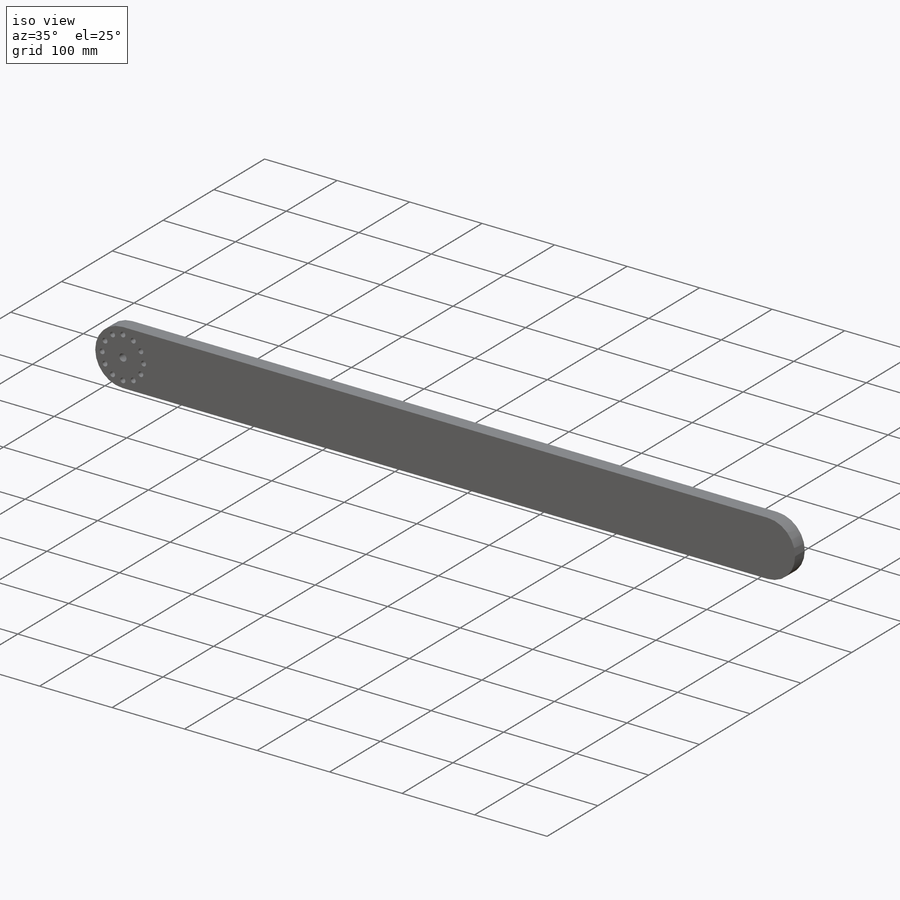
[diagram: iso view]
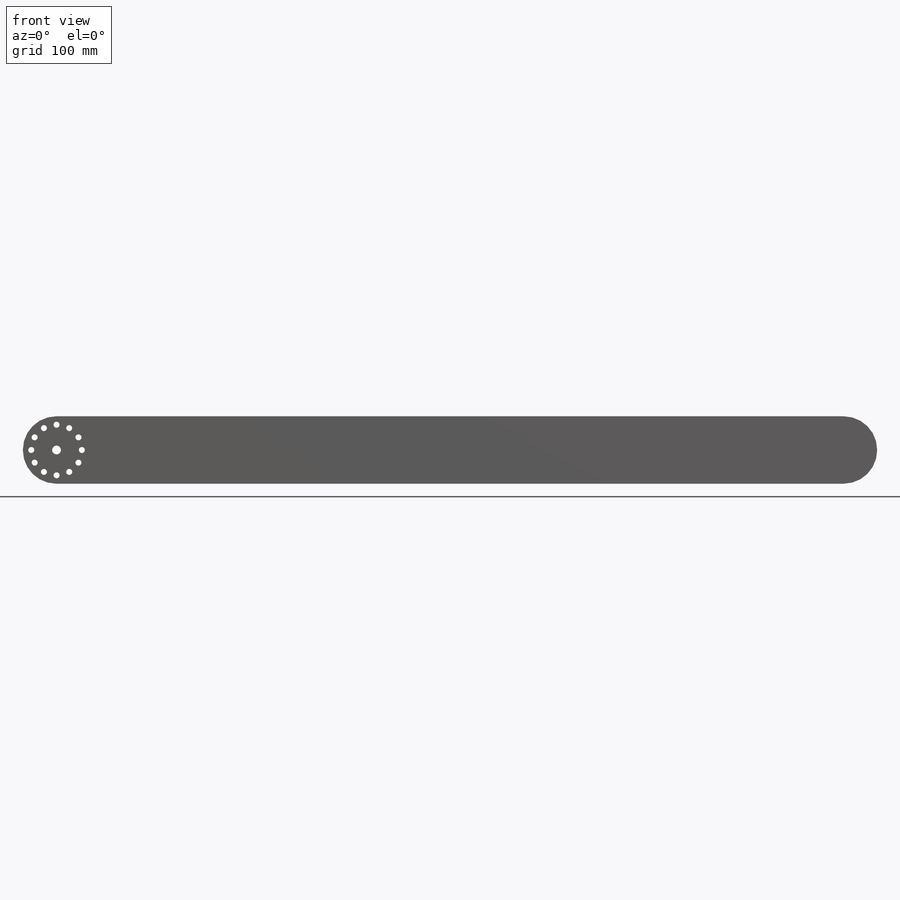
[diagram: front view]
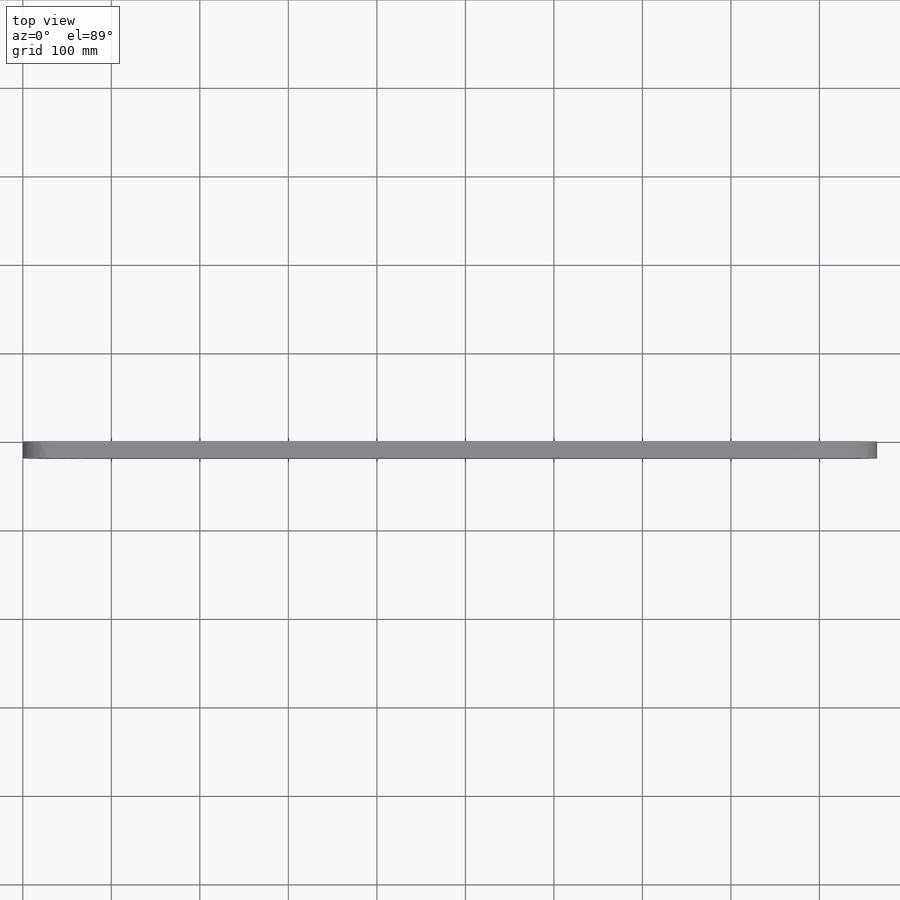
[diagram: top view]
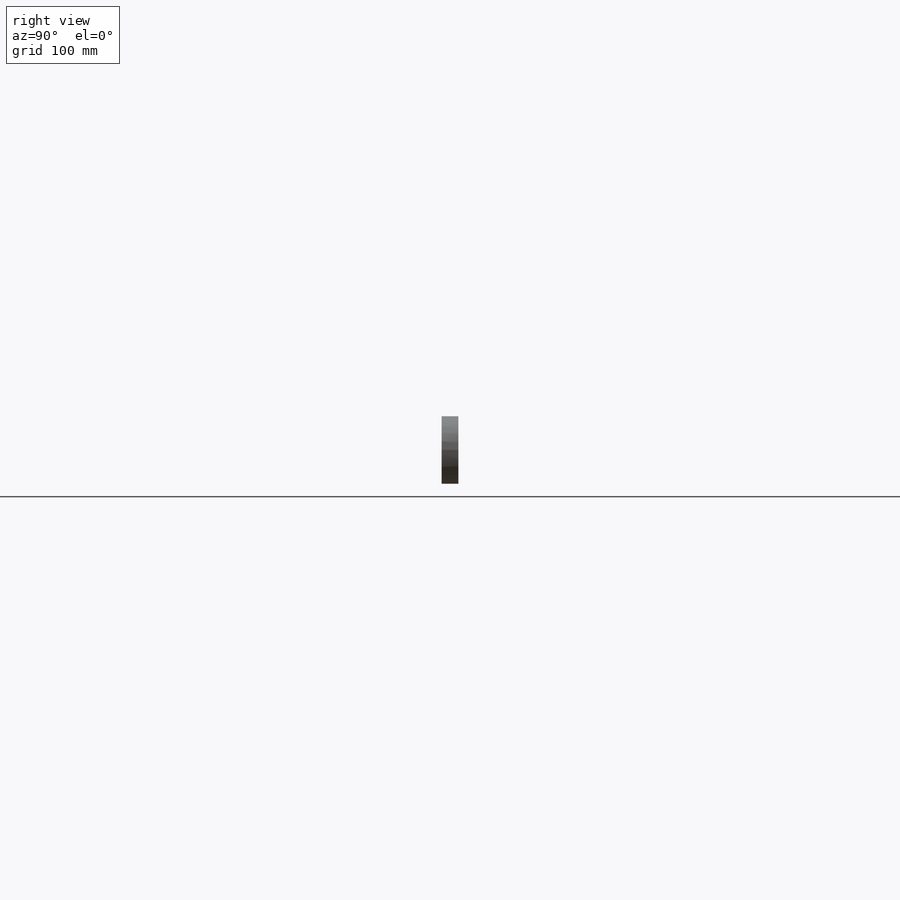
[diagram: right view]
SOLIDWORKS PART (.sldprt)
format: sldprt  version: not decoded by parser v0  size: 207,872 bytes
history: native  units: mm
features: sketch x3, cut_extrude x2, material x1, extrude x1 (+13 scaffold rows collapsed)
feature tree (20):
  scaffold x13  (default folders/planes/origin — collapsed)
  material  "Material <not specified>"
  sketch  "Sketch2"  dims[D3=37.846mm D1=76.2mm D2=965.2mm]
  extrude  "Boss-Extrude1"  Depth=19.05mm
  sketch  "Sketch3"  dims[c1.D3=~26.484832mm c1.D1=120.65mm c1.D2=7.0 c2.D3=7.0]
  cut_extrude  "Cut-Extrude1"  Depth=9.525mm
  sketch  "Sketch5"  dims[c1.D2=~9.921875mm c1.D3=57.15mm c1.D4=~6.746875mm c1.D1=38.1mm c2.D4=889.508mm c2.D5=12.0]
  cut_extrude  "Cut-Extrude10"  Depth=19.05mm
decode coverage: 6 of 6 modeling features carry decoded parameters
note: ~ marks probable driven/reference dimensions
note: suppression state not decoded; provenance and decode notes live in map.json
